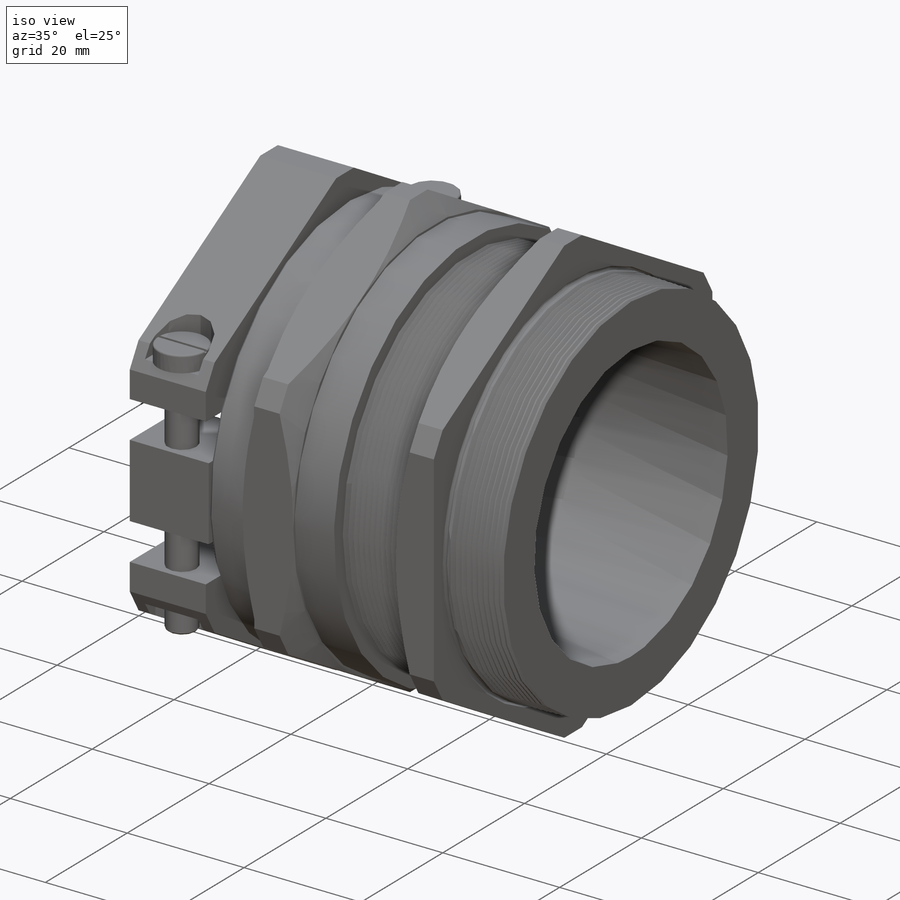
[diagram: iso view]
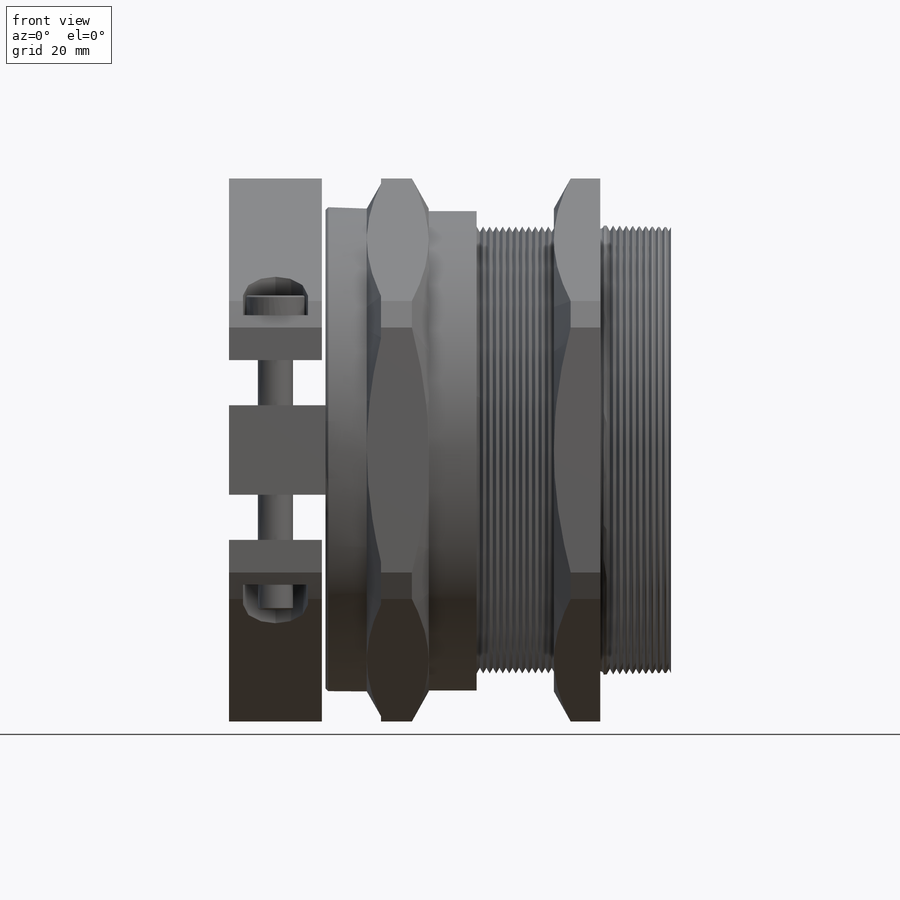
[diagram: front view]
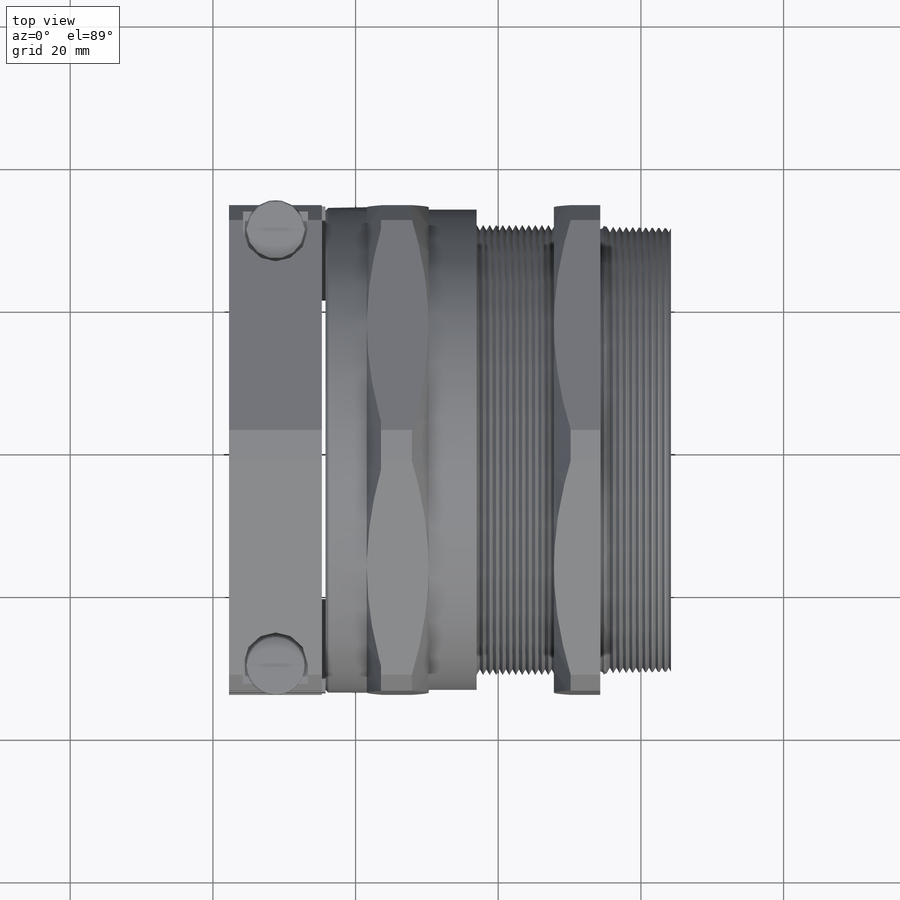
[diagram: top view]
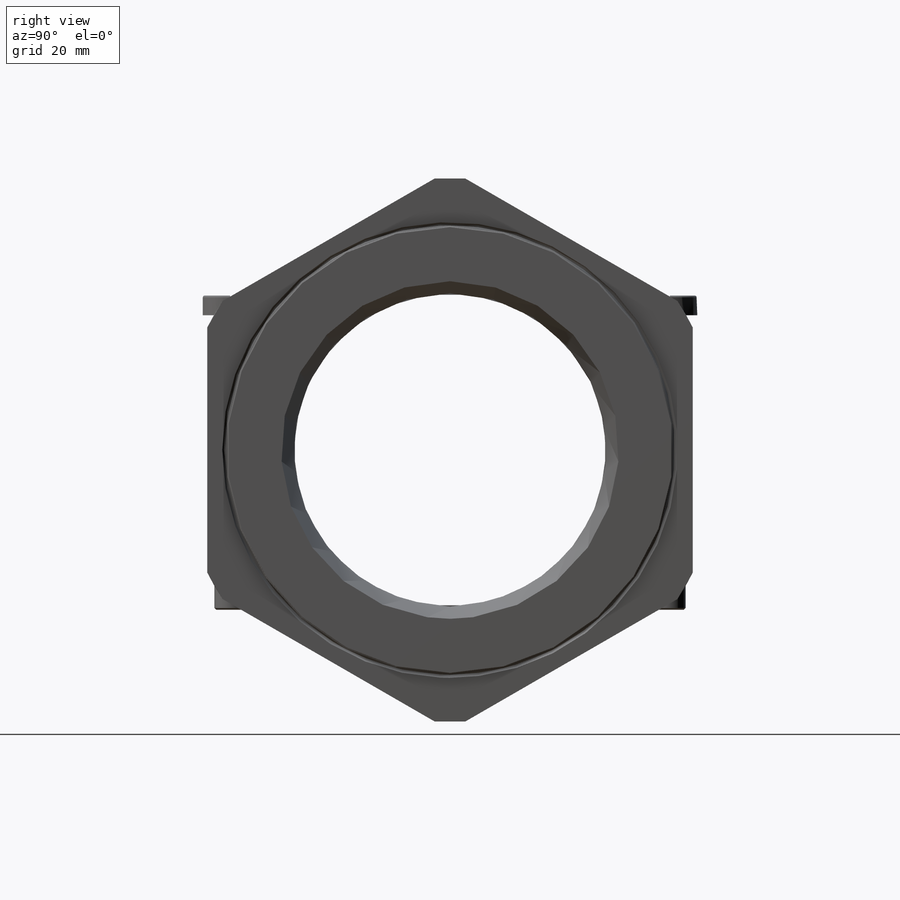
[diagram: right view]
SOLIDWORKS PART (.sldprt)
format: sldprt  version: not decoded by parser v0  size: 701,440 bytes
history: native  units: mm
features: sketch x16, cut_extrude x7, revolve x3, extrude x3, mirror x3, cut_revolve x3, chamfer x2, pattern_linear x2, material x1, plane x1, fillet x1 (+14 scaffold rows collapsed)
feature tree (56):
  scaffold x14  (default folders/planes/origin — collapsed)
  material  "Material <not specified>"
  plane  "Plane1"  Offset=18.8976mm
  sketch  "Sketch1"  dims[c1.Cable dia=43.942mm c1.E/E1+=~76.24064mm c1.D3=0.635mm c1.Th+=63.0936mm c1.1.5NW=13.0175mm c1.NW1=~8.678333mm c1.NW3=~6.50875mm c1.B=52.07mm c1.D=5.08mm c1.D5=0.508mm c1.D2=~20.453684mm c1.D6=2.0mm c1.D7=~30.842857mm c1.A=~78.788722mm c1.Th=12.446mm c2.D6=~5.785556mm c2.D1=12.0015mm c3.D1=4.0deg c3.D=9.906mm c3.D2=0.0254mm c3.D3=57.1246mm c3.D4=5.0546mm c3.angle=1.5deg c3.Th=62.992mm c4.D4=68.072mm c4.D7=~6.723944mm c4.D8=0.3175mm]
  revolve  "Revolve1"  Angle=360deg
  sketch  "Sketch2"  dims[c1.E/E1=~50.671516mm c2.E/E1=68.072mm]
  cut_extrude  "Cut-Extrude1"  [1 undecoded]
  sketch  "Sketch13"
  cut_extrude  "Cut1"  [1 undecoded]
  sketch  "Sketch14"
  cut_extrude  "Cut2"  [1 undecoded]
  sketch  "Sketch15"
  cut_extrude  "Cut3"  Depth=2mm
  chamfer  "Chamfer1"  Distance=0.381mm Angle=45deg
  sketch  "Sketch3"  dims[D1=25.1968mm D2=~37.551718mm]
  cut_extrude  "Cut-Extrude2"  [1 undecoded]
  sketch  "Sketch4"  dims[c1.D2=~3.910837mm c1.D1=~13.510632mm c2.D2=~13.510632mm c2.D1=~187.781732mm c3.D1=270.0deg c4.D1=~187.781732mm c5.D1=90.0deg c6.D1=~12.554857mm c6.D2=~3.910837mm]
  extrude  "Extrude1"  Depth=2.54mm
  sketch  "Sketch5"  dims[c1.D2=~7.050349mm c1.D1=0.889mm c2.D2=~3.471333mm c2.D1=~4.332111mm]
  cut_extrude  "Cut-Extrude3"  [1 undecoded]
  mirror  "Mirror1"
  mirror  "Mirror2"
  sketch  "Sketch6"  dims[c1.D1=~8.201025mm c1.D2=10.0mm c2.D1=~14.383156mm]
  extrude  "Extrude2"  [1 undecoded]
  sketch  "Sketch7"  dims[D1=~3.368078mm]
  extrude  "Extrude3"  Depth=34.995556mm
  sketch  "Sketch8"  dims[D1=0.508mm]
  cut_extrude  "Cut-Extrude4"  Depth=0.381mm
  fillet  "Fillet1"  Radius=0.254mm
  mirror  "Mirror3"
  sketch  "Sketch11"  dims[c1.D1=~3.090333mm c1.D2=~0.807353mm c2.D2=30.0deg c2.D3=~0.818717mm c3.D3=60.0deg c3.H=~0.781835mm c3.D1=~3.090333mm c3.D2=~0.781835mm c4.D2=60.0deg c4.D1=~6.723944mm]
  cut_revolve  "Cut-Revolve1"  Angle=360deg
  pattern_linear  "LPattern1"  Count1=12 Count2=1 Spacing1=0.9144mm Spacing2=50mm N=12 Pitch=0.9144mm
  sketch  "Sketch12"  dims[c1.D1=11.938mm c2.D1=30.0deg c2.D2=~0.746154mm c3.D2=60.0deg c3.D3=~0.781835mm c3.D4=0.889mm c3.D1=3.5231mm c4.D1=30.0deg]
  cut_revolve  "Cut-Revolve2"  Angle=360deg
  pattern_linear  "LPattern2"  Count1=10 Count2=1 Spacing1=0.9144mm Spacing2=50mm
  sketch  "Sketch16"  dims[D1=0.889mm D2=~0.027651mm]
  sketch  "Sketch17"  dims[D2=0.635mm D1=0.762mm]
  revolve  "Revolve3"  Angle=360deg
  sketch  "Sketch18"  dims[D1=0.254mm D2=1.016mm]
  revolve  "Revolve4"  Angle=360deg
  cut_revolve  "Cut-Revolve3"  Angle=360deg
  chamfer  "Chamfer2"  Distance=0.254mm Angle=45deg
decode coverage: 28 of 40 modeling features carry decoded parameters
note: ~ marks probable driven/reference dimensions
note: 6 parameter values undecoded
summary: no parameter record found for 6 features
note: suppression state not decoded; provenance and decode notes live in map.json
